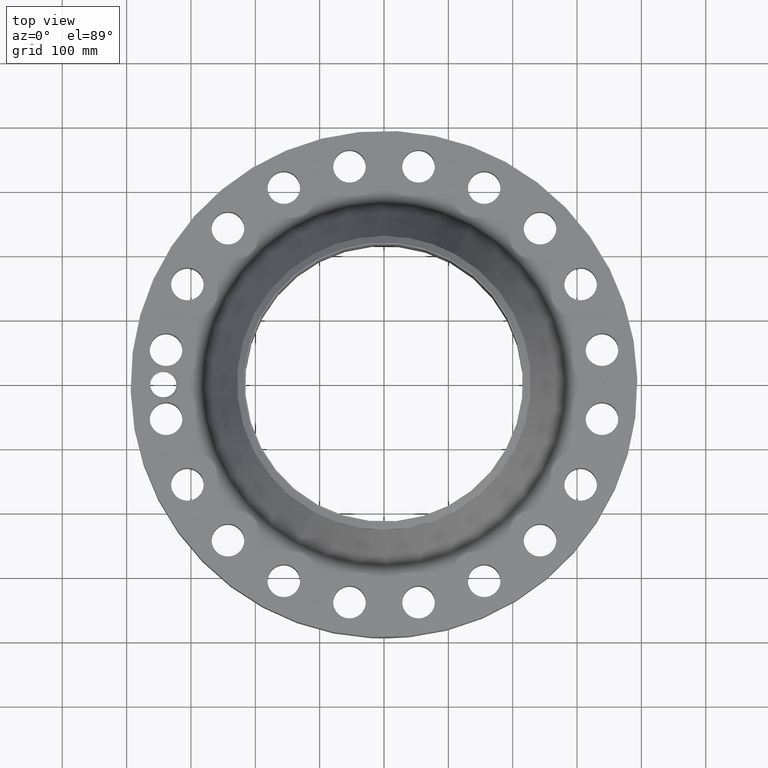
[diagram: clean part render]
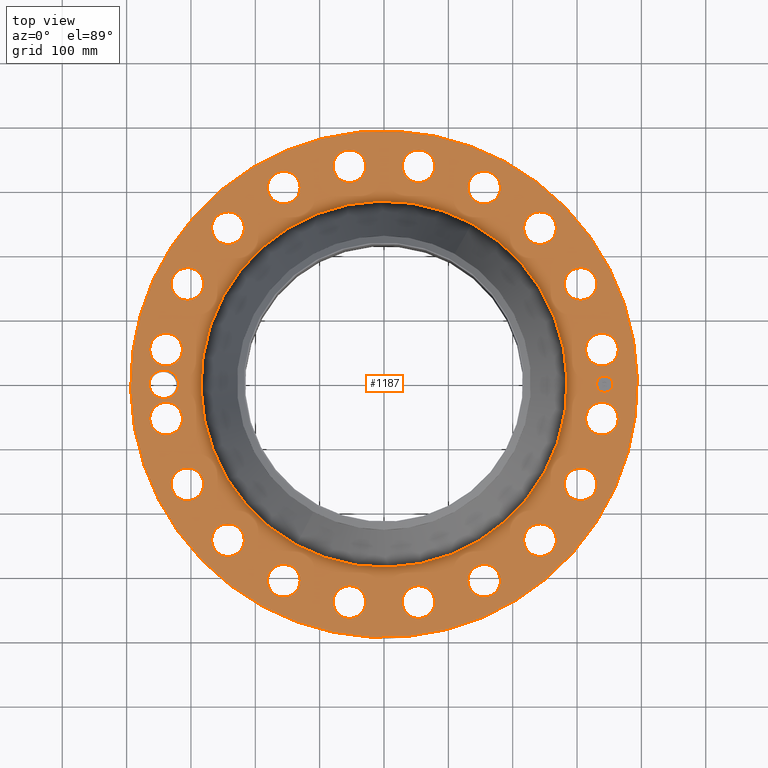
[diagram: same view with one face highlighted and labeled with its STEP entity id]
A machine part, top view. The second image highlights one B-rep face of the part: STEP entity #1187.
In plain terms, the highlighted planar face has unit normal (0, 0, -1).
Its self-contained STEP definition (entity closure, byte-faithful):
#58=AXIS2_PLACEMENT_3D('Circle Axis2P3D',#56,#57,$) ;
#621=AXIS2_PLACEMENT_3D('Circle Axis2P3D',#619,#620,$) ;
#721=AXIS2_PLACEMENT_3D('Plane Axis2P3D',#718,#719,#720) ;
#775=AXIS2_PLACEMENT_3D('Circle Axis2P3D',#773,#774,$) ;
#782=AXIS2_PLACEMENT_3D('Circle Axis2P3D',#780,#781,$) ;
#793=AXIS2_PLACEMENT_3D('Circle Axis2P3D',#791,#792,$) ;
#802=AXIS2_PLACEMENT_3D('Circle Axis2P3D',#800,#801,$) ;
#811=AXIS2_PLACEMENT_3D('Circle Axis2P3D',#809,#810,$) ;
#820=AXIS2_PLACEMENT_3D('Circle Axis2P3D',#818,#819,$) ;
#829=AXIS2_PLACEMENT_3D('Circle Axis2P3D',#827,#828,$) ;
#838=AXIS2_PLACEMENT_3D('Circle Axis2P3D',#836,#837,$) ;
#847=AXIS2_PLACEMENT_3D('Circle Axis2P3D',#845,#846,$) ;
#856=AXIS2_PLACEMENT_3D('Circle Axis2P3D',#854,#855,$) ;
#865=AXIS2_PLACEMENT_3D('Circle Axis2P3D',#863,#864,$) ;
#874=AXIS2_PLACEMENT_3D('Circle Axis2P3D',#872,#873,$) ;
#883=AXIS2_PLACEMENT_3D('Circle Axis2P3D',#881,#882,$) ;
#892=AXIS2_PLACEMENT_3D('Circle Axis2P3D',#890,#891,$) ;
#901=AXIS2_PLACEMENT_3D('Circle Axis2P3D',#899,#900,$) ;
#910=AXIS2_PLACEMENT_3D('Circle Axis2P3D',#908,#909,$) ;
#919=AXIS2_PLACEMENT_3D('Circle Axis2P3D',#917,#918,$) ;
#928=AXIS2_PLACEMENT_3D('Circle Axis2P3D',#926,#927,$) ;
#937=AXIS2_PLACEMENT_3D('Circle Axis2P3D',#935,#936,$) ;
#946=AXIS2_PLACEMENT_3D('Circle Axis2P3D',#944,#945,$) ;
#955=AXIS2_PLACEMENT_3D('Circle Axis2P3D',#953,#954,$) ;
#964=AXIS2_PLACEMENT_3D('Circle Axis2P3D',#962,#963,$) ;
#973=AXIS2_PLACEMENT_3D('Circle Axis2P3D',#971,#972,$) ;
#982=AXIS2_PLACEMENT_3D('Circle Axis2P3D',#980,#981,$) ;
#991=AXIS2_PLACEMENT_3D('Circle Axis2P3D',#989,#990,$) ;
#1000=AXIS2_PLACEMENT_3D('Circle Axis2P3D',#998,#999,$) ;
#1009=AXIS2_PLACEMENT_3D('Circle Axis2P3D',#1007,#1008,$) ;
#1018=AXIS2_PLACEMENT_3D('Circle Axis2P3D',#1016,#1017,$) ;
#1027=AXIS2_PLACEMENT_3D('Circle Axis2P3D',#1025,#1026,$) ;
#1036=AXIS2_PLACEMENT_3D('Circle Axis2P3D',#1034,#1035,$) ;
#1045=AXIS2_PLACEMENT_3D('Circle Axis2P3D',#1043,#1044,$) ;
#1054=AXIS2_PLACEMENT_3D('Circle Axis2P3D',#1052,#1053,$) ;
#1063=AXIS2_PLACEMENT_3D('Circle Axis2P3D',#1061,#1062,$) ;
#1072=AXIS2_PLACEMENT_3D('Circle Axis2P3D',#1070,#1071,$) ;
#1081=AXIS2_PLACEMENT_3D('Circle Axis2P3D',#1079,#1080,$) ;
#1090=AXIS2_PLACEMENT_3D('Circle Axis2P3D',#1088,#1089,$) ;
#1099=AXIS2_PLACEMENT_3D('Circle Axis2P3D',#1097,#1098,$) ;
#1108=AXIS2_PLACEMENT_3D('Circle Axis2P3D',#1106,#1107,$) ;
#1117=AXIS2_PLACEMENT_3D('Circle Axis2P3D',#1115,#1116,$) ;
#1126=AXIS2_PLACEMENT_3D('Circle Axis2P3D',#1124,#1125,$) ;
#1135=AXIS2_PLACEMENT_3D('Circle Axis2P3D',#1133,#1134,$) ;
#1144=AXIS2_PLACEMENT_3D('Circle Axis2P3D',#1142,#1143,$) ;
#1153=AXIS2_PLACEMENT_3D('Circle Axis2P3D',#1151,#1152,$) ;
#1162=AXIS2_PLACEMENT_3D('Circle Axis2P3D',#1160,#1161,$) ;
#1171=AXIS2_PLACEMENT_3D('Circle Axis2P3D',#1169,#1170,$) ;
#1180=AXIS2_PLACEMENT_3D('Circle Axis2P3D',#1178,#1179,$) ;
#53=CARTESIAN_POINT('Vertex',(-7.43109584839,-13.6025297094,4.25000000002)) ;
#56=CARTESIAN_POINT('Axis2P3D Location',(0.,0.,4.25000000002)) ;
#60=CARTESIAN_POINT('Vertex',(7.43109584839,13.6025297094,4.25000000002)) ;
#619=CARTESIAN_POINT('Axis2P3D Location',(0.,0.,4.25000000002)) ;
#718=CARTESIAN_POINT('Axis2P3D Location',(0.,15.5000000001,4.25000000002)) ;
#728=CARTESIAN_POINT('Control Point',(-12.5625000001,4.47585975282E-015,4.25000000002)) ;
#729=CARTESIAN_POINT('Control Point',(-12.5658486124,0.0752397465132,4.25000000002)) ;
#730=CARTESIAN_POINT('Control Point',(-12.5767531939,0.149987026567,4.25000000002)) ;
#731=CARTESIAN_POINT('Control Point',(-12.5951503388,0.223217022199,4.25000000002)) ;
#732=CARTESIAN_POINT('Control Point',(-12.6463729456,0.364618376065,4.25000000002)) ;
#733=CARTESIAN_POINT('Control Point',(-12.7245963322,0.492274300287,4.25000000002)) ;
#734=CARTESIAN_POINT('Control Point',(-12.7699947335,0.551754648168,4.25000000002)) ;
#735=CARTESIAN_POINT('Control Point',(-12.8720311049,0.660346621747,4.25000000002)) ;
#736=CARTESIAN_POINT('Control Point',(-12.9934279303,0.745630432672,4.25000000002)) ;
#737=CARTESIAN_POINT('Control Point',(-13.0581602233,0.781776573789,4.25000000002)) ;
#738=CARTESIAN_POINT('Control Point',(-13.1712137396,0.830357967696,4.25000000002)) ;
#739=CARTESIAN_POINT('Control Point',(-13.2901022282,0.85871043732,4.25000000002)) ;
#740=CARTESIAN_POINT('Control Point',(-13.3382768743,0.866725037548,4.25000000002)) ;
#741=CARTESIAN_POINT('Control Point',(-13.4180331983,0.874371070546,4.25000000002)) ;
#742=CARTESIAN_POINT('Control Point',(-13.4977855393,0.872912337777,4.25000000002)) ;
#743=CARTESIAN_POINT('Control Point',(-13.5289669714,0.870941299159,4.25000000002)) ;
#744=CARTESIAN_POINT('Control Point',(-13.5599796824,0.867579221346,4.25000000002)) ;
#745=CARTESIAN_POINT('Control Point',(-13.5907413049,0.862841686291,4.25000000002)) ;
#746=CARTESIAN_POINT('Vertex',(-12.5625000001,4.47585975282E-015,4.25000000002)) ;
#748=CARTESIAN_POINT('Vertex',(-13.5907413049,0.862841686291,4.25000000002)) ;
#752=CARTESIAN_POINT('Control Point',(-12.5625000001,0.,4.25000000002)) ;
#753=CARTESIAN_POINT('Control Point',(-12.5658491795,-0.0752524886494,4.25000000002)) ;
#754=CARTESIAN_POINT('Control Point',(-12.576756915,-0.150012342381,4.25000000002)) ;
#755=CARTESIAN_POINT('Control Point',(-12.5951533231,-0.223239907341,4.25000000002)) ;
#756=CARTESIAN_POINT('Control Point',(-12.6463784794,-0.364651652733,4.25000000002)) ;
#757=CARTESIAN_POINT('Control Point',(-12.7245736954,-0.492256747685,4.25000000002)) ;
#758=CARTESIAN_POINT('Control Point',(-12.7699609517,-0.551715819339,4.25000000002)) ;
#759=CARTESIAN_POINT('Control Point',(-12.8719890104,-0.660302429929,4.25000000002)) ;
#760=CARTESIAN_POINT('Control Point',(-12.9933301485,-0.745568301579,4.25000000002)) ;
#761=CARTESIAN_POINT('Control Point',(-13.0580542985,-0.781724356876,4.25000000002)) ;
#762=CARTESIAN_POINT('Control Point',(-13.1936449616,-0.840027223823,4.25000000002)) ;
#763=CARTESIAN_POINT('Control Point',(-13.337679587,-0.869225062827,4.25000000002)) ;
#764=CARTESIAN_POINT('Control Point',(-13.4107744729,-0.876250803678,4.25000000002)) ;
#765=CARTESIAN_POINT('Control Point',(-13.49094601,-0.875557275387,4.25000000002)) ;
#766=CARTESIAN_POINT('Control Point',(-13.5699063511,-0.865829472276,4.25000000002)) ;
#767=CARTESIAN_POINT('Control Point',(-13.576818554,-0.864907319626,4.25000000002)) ;
#768=CARTESIAN_POINT('Control Point',(-13.5837195993,-0.863915987763,4.25000000002)) ;
#769=CARTESIAN_POINT('Control Point',(-13.5906085509,-0.862855637126,4.25000000002)) ;
#770=CARTESIAN_POINT('Vertex',(-13.5906085509,-0.862855637126,4.25000000002)) ;
#773=CARTESIAN_POINT('Axis2P3D Location',(-13.5000000001,-1.1189649382E-014,4.25000000002)) ;
#777=CARTESIAN_POINT('Vertex',(-14.2613906308,0.415949597295,4.25000000002)) ;
#780=CARTESIAN_POINT('Axis2P3D Location',(-13.5000000001,-1.1189649382E-014,4.25000000002)) ;
#791=CARTESIAN_POINT('Axis2P3D Location',(13.3337925981,-2.11186527805,4.25000000002)) ;
#795=CARTESIAN_POINT('Vertex',(12.4562100362,-1.63243973945,4.25000000002)) ;
#797=CARTESIAN_POINT('Vertex',(14.21137516,-2.59129081666,4.25000000002)) ;
#800=CARTESIAN_POINT('Axis2P3D Location',(13.3337925981,-2.11186527805,4.25000000002)) ;
#809=CARTESIAN_POINT('Axis2P3D Location',(0.,0.,4.25000000002)) ;
#813=CARTESIAN_POINT('Vertex',(-5.36985711754,-9.829457521,4.25000000002)) ;
#815=CARTESIAN_POINT('Vertex',(5.36985711754,9.829457521,4.25000000002)) ;
#818=CARTESIAN_POINT('Axis2P3D Location',(0.,0.,4.25000000002)) ;
#827=CARTESIAN_POINT('Axis2P3D Location',(12.0285880766,-6.12887174651,4.25000000002)) ;
#831=CARTESIAN_POINT('Vertex',(12.7150680517,-6.85602045467,4.25000000002)) ;
#833=CARTESIAN_POINT('Vertex',(11.3421081015,-5.40172303835,4.25000000002)) ;
#836=CARTESIAN_POINT('Axis2P3D Location',(12.0285880766,-6.12887174651,4.25000000002)) ;
#845=CARTESIAN_POINT('Axis2P3D Location',(9.54594154606,-9.54594154606,4.25000000002)) ;
#849=CARTESIAN_POINT('Vertex',(9.97412149143,-10.4496350419,4.25000000002)) ;
#851=CARTESIAN_POINT('Vertex',(9.11776160068,-8.64224805024,4.25000000002)) ;
#854=CARTESIAN_POINT('Axis2P3D Location',(9.54594154606,-9.54594154606,4.25000000002)) ;
#863=CARTESIAN_POINT('Axis2P3D Location',(6.12887174651,-12.0285880766,4.25000000002)) ;
#867=CARTESIAN_POINT('Vertex',(6.25683842579,-13.0203665443,4.25000000002)) ;
#869=CARTESIAN_POINT('Vertex',(6.00090506723,-11.0368096089,4.25000000002)) ;
#872=CARTESIAN_POINT('Axis2P3D Location',(6.12887174651,-12.0285880766,4.25000000002)) ;
#881=CARTESIAN_POINT('Axis2P3D Location',(2.11186527805,-13.3337925981,4.25000000002)) ;
#885=CARTESIAN_POINT('Vertex',(1.92709242107,-14.3165738511,4.25000000002)) ;
#887=CARTESIAN_POINT('Vertex',(2.29663813503,-12.351011345,4.25000000002)) ;
#890=CARTESIAN_POINT('Axis2P3D Location',(2.11186527805,-13.3337925981,4.25000000002)) ;
#899=CARTESIAN_POINT('Axis2P3D Location',(-2.11186527805,-13.3337925981,4.25000000002)) ;
#903=CARTESIAN_POINT('Vertex',(-2.59129081666,-14.21137516,4.25000000002)) ;
#905=CARTESIAN_POINT('Vertex',(-1.63243973945,-12.4562100362,4.25000000002)) ;
#908=CARTESIAN_POINT('Axis2P3D Location',(-2.11186527805,-13.3337925981,4.25000000002)) ;
#917=CARTESIAN_POINT('Axis2P3D Location',(-6.12887174651,-12.0285880766,4.25000000002)) ;
#921=CARTESIAN_POINT('Vertex',(-6.85602045467,-12.7150680517,4.25000000002)) ;
#923=CARTESIAN_POINT('Vertex',(-5.40172303835,-11.3421081015,4.25000000002)) ;
#926=CARTESIAN_POINT('Axis2P3D Location',(-6.12887174651,-12.0285880766,4.25000000002)) ;
#935=CARTESIAN_POINT('Axis2P3D Location',(-9.54594154606,-9.54594154606,4.25000000002)) ;
#939=CARTESIAN_POINT('Vertex',(-10.4496350419,-9.97412149143,4.25000000002)) ;
#941=CARTESIAN_POINT('Vertex',(-8.64224805024,-9.11776160068,4.25000000002)) ;
#944=CARTESIAN_POINT('Axis2P3D Location',(-9.54594154606,-9.54594154606,4.25000000002)) ;
#953=CARTESIAN_POINT('Axis2P3D Location',(-12.0285880766,-6.12887174651,4.25000000002)) ;
#957=CARTESIAN_POINT('Vertex',(-13.0203665443,-6.25683842579,4.25000000002)) ;
#959=CARTESIAN_POINT('Vertex',(-11.0368096089,-6.00090506723,4.25000000002)) ;
#962=CARTESIAN_POINT('Axis2P3D Location',(-12.0285880766,-6.12887174651,4.25000000002)) ;
#971=CARTESIAN_POINT('Axis2P3D Location',(-13.3337925981,-2.11186527805,4.25000000002)) ;
#975=CARTESIAN_POINT('Vertex',(-14.3165738511,-1.92709242107,4.25000000002)) ;
#977=CARTESIAN_POINT('Vertex',(-12.351011345,-2.29663813503,4.25000000002)) ;
#980=CARTESIAN_POINT('Axis2P3D Location',(-13.3337925981,-2.11186527805,4.25000000002)) ;
#989=CARTESIAN_POINT('Axis2P3D Location',(-13.3337925981,2.11186527805,4.25000000002)) ;
#993=CARTESIAN_POINT('Vertex',(-14.21137516,2.59129081666,4.25000000002)) ;
#995=CARTESIAN_POINT('Vertex',(-12.4562100362,1.63243973945,4.25000000002)) ;
#998=CARTESIAN_POINT('Axis2P3D Location',(-13.3337925981,2.11186527805,4.25000000002)) ;
#1007=CARTESIAN_POINT('Axis2P3D Location',(-12.0285880766,6.12887174651,4.25000000002)) ;
#1011=CARTESIAN_POINT('Vertex',(-12.7150680517,6.85602045467,4.25000000002)) ;
#1013=CARTESIAN_POINT('Vertex',(-11.3421081015,5.40172303835,4.25000000002)) ;
#1016=CARTESIAN_POINT('Axis2P3D Location',(-12.0285880766,6.12887174651,4.25000000002)) ;
#1025=CARTESIAN_POINT('Axis2P3D Location',(-9.54594154606,9.54594154606,4.25000000002)) ;
#1029=CARTESIAN_POINT('Vertex',(-9.97412149143,10.4496350419,4.25000000002)) ;
#1031=CARTESIAN_POINT('Vertex',(-9.11776160068,8.64224805024,4.25000000002)) ;
#1034=CARTESIAN_POINT('Axis2P3D Location',(-9.54594154606,9.54594154606,4.25000000002)) ;
#1043=CARTESIAN_POINT('Axis2P3D Location',(-6.12887174651,12.0285880766,4.25000000002)) ;
#1047=CARTESIAN_POINT('Vertex',(-6.25683842579,13.0203665443,4.25000000002)) ;
#1049=CARTESIAN_POINT('Vertex',(-6.00090506723,11.0368096089,4.25000000002)) ;
#1052=CARTESIAN_POINT('Axis2P3D Location',(-6.12887174651,12.0285880766,4.25000000002)) ;
#1061=CARTESIAN_POINT('Axis2P3D Location',(-2.11186527805,13.3337925981,4.25000000002)) ;
#1065=CARTESIAN_POINT('Vertex',(-1.92709242107,14.3165738511,4.25000000002)) ;
#1067=CARTESIAN_POINT('Vertex',(-2.29663813503,12.351011345,4.25000000002)) ;
#1070=CARTESIAN_POINT('Axis2P3D Location',(-2.11186527805,13.3337925981,4.25000000002)) ;
#1079=CARTESIAN_POINT('Axis2P3D Location',(2.11186527805,13.3337925981,4.25000000002)) ;
#1083=CARTESIAN_POINT('Vertex',(2.59129081666,14.21137516,4.25000000002)) ;
#1085=CARTESIAN_POINT('Vertex',(1.63243973945,12.4562100362,4.25000000002)) ;
#1088=CARTESIAN_POINT('Axis2P3D Location',(2.11186527805,13.3337925981,4.25000000002)) ;
#1097=CARTESIAN_POINT('Axis2P3D Location',(6.12887174651,12.0285880766,4.25000000002)) ;
#1101=CARTESIAN_POINT('Vertex',(6.85602045467,12.7150680517,4.25000000002)) ;
#1103=CARTESIAN_POINT('Vertex',(5.40172303835,11.3421081015,4.25000000002)) ;
#1106=CARTESIAN_POINT('Axis2P3D Location',(6.12887174651,12.0285880766,4.25000000002)) ;
#1115=CARTESIAN_POINT('Axis2P3D Location',(9.54594154606,9.54594154606,4.25000000002)) ;
#1119=CARTESIAN_POINT('Vertex',(10.4496350419,9.97412149143,4.25000000002)) ;
#1121=CARTESIAN_POINT('Vertex',(8.64224805024,9.11776160068,4.25000000002)) ;
#1124=CARTESIAN_POINT('Axis2P3D Location',(9.54594154606,9.54594154606,4.25000000002)) ;
#1133=CARTESIAN_POINT('Axis2P3D Location',(12.0285880766,6.12887174651,4.25000000002)) ;
#1137=CARTESIAN_POINT('Vertex',(13.0203665443,6.25683842579,4.25000000002)) ;
#1139=CARTESIAN_POINT('Vertex',(11.0368096089,6.00090506723,4.25000000002)) ;
#1142=CARTESIAN_POINT('Axis2P3D Location',(12.0285880766,6.12887174651,4.25000000002)) ;
#1151=CARTESIAN_POINT('Axis2P3D Location',(13.3337925981,2.11186527805,4.25000000002)) ;
#1155=CARTESIAN_POINT('Vertex',(14.3165738511,1.92709242107,4.25000000002)) ;
#1157=CARTESIAN_POINT('Vertex',(12.351011345,2.29663813503,4.25000000002)) ;
#1160=CARTESIAN_POINT('Axis2P3D Location',(13.3337925981,2.11186527805,4.25000000002)) ;
#1169=CARTESIAN_POINT('Axis2P3D Location',(13.5000000001,-1.23086143203E-013,4.25000000002)) ;
#1173=CARTESIAN_POINT('Vertex',(13.5000000001,0.499999995002,4.25000000002)) ;
#1175=CARTESIAN_POINT('Vertex',(13.5000000001,-0.499999995002,4.25000000002)) ;
#1178=CARTESIAN_POINT('Axis2P3D Location',(13.5000000001,-1.23086143203E-013,4.25000000002)) ;
#57=DIRECTION('Axis2P3D Direction',(0.,0.,-0.0393700787402)) ;
#620=DIRECTION('Axis2P3D Direction',(0.,0.,-0.0393700787402)) ;
#719=DIRECTION('Axis2P3D Direction',(0.,0.,-0.0393700787402)) ;
#720=DIRECTION('Axis2P3D XDirection',(0.0393700787402,0.,0.)) ;
#774=DIRECTION('Axis2P3D Direction',(0.,0.,-0.0393700787402)) ;
#781=DIRECTION('Axis2P3D Direction',(0.,0.,-0.0393700787402)) ;
#792=DIRECTION('Axis2P3D Direction',(0.,0.,-0.0393700787402)) ;
#801=DIRECTION('Axis2P3D Direction',(0.,0.,-0.0393700787402)) ;
#810=DIRECTION('Axis2P3D Direction',(0.,0.,-0.0393700787402)) ;
#819=DIRECTION('Axis2P3D Direction',(0.,0.,-0.0393700787402)) ;
#828=DIRECTION('Axis2P3D Direction',(0.,0.,-0.0393700787402)) ;
#837=DIRECTION('Axis2P3D Direction',(0.,0.,-0.0393700787402)) ;
#846=DIRECTION('Axis2P3D Direction',(0.,0.,-0.0393700787402)) ;
#855=DIRECTION('Axis2P3D Direction',(0.,0.,-0.0393700787402)) ;
#864=DIRECTION('Axis2P3D Direction',(0.,0.,-0.0393700787402)) ;
#873=DIRECTION('Axis2P3D Direction',(0.,0.,-0.0393700787402)) ;
#882=DIRECTION('Axis2P3D Direction',(0.,0.,-0.0393700787402)) ;
#891=DIRECTION('Axis2P3D Direction',(0.,0.,-0.0393700787402)) ;
#900=DIRECTION('Axis2P3D Direction',(0.,0.,-0.0393700787402)) ;
#909=DIRECTION('Axis2P3D Direction',(0.,0.,-0.0393700787402)) ;
#918=DIRECTION('Axis2P3D Direction',(0.,0.,-0.0393700787402)) ;
#927=DIRECTION('Axis2P3D Direction',(0.,0.,-0.0393700787402)) ;
#936=DIRECTION('Axis2P3D Direction',(0.,0.,-0.0393700787402)) ;
#945=DIRECTION('Axis2P3D Direction',(0.,0.,-0.0393700787402)) ;
#954=DIRECTION('Axis2P3D Direction',(0.,0.,-0.0393700787402)) ;
#963=DIRECTION('Axis2P3D Direction',(0.,0.,-0.0393700787402)) ;
#972=DIRECTION('Axis2P3D Direction',(0.,0.,-0.0393700787402)) ;
#981=DIRECTION('Axis2P3D Direction',(0.,0.,-0.0393700787402)) ;
#990=DIRECTION('Axis2P3D Direction',(0.,0.,-0.0393700787402)) ;
#999=DIRECTION('Axis2P3D Direction',(0.,0.,-0.0393700787402)) ;
#1008=DIRECTION('Axis2P3D Direction',(0.,0.,-0.0393700787402)) ;
#1017=DIRECTION('Axis2P3D Direction',(0.,0.,-0.0393700787402)) ;
#1026=DIRECTION('Axis2P3D Direction',(0.,0.,-0.0393700787402)) ;
#1035=DIRECTION('Axis2P3D Direction',(0.,0.,-0.0393700787402)) ;
#1044=DIRECTION('Axis2P3D Direction',(0.,0.,-0.0393700787402)) ;
#1053=DIRECTION('Axis2P3D Direction',(0.,0.,-0.0393700787402)) ;
#1062=DIRECTION('Axis2P3D Direction',(0.,0.,-0.0393700787402)) ;
#1071=DIRECTION('Axis2P3D Direction',(0.,0.,-0.0393700787402)) ;
#1080=DIRECTION('Axis2P3D Direction',(0.,0.,-0.0393700787402)) ;
#1089=DIRECTION('Axis2P3D Direction',(0.,0.,-0.0393700787402)) ;
#1098=DIRECTION('Axis2P3D Direction',(0.,0.,-0.0393700787402)) ;
#1107=DIRECTION('Axis2P3D Direction',(0.,0.,-0.0393700787402)) ;
#1116=DIRECTION('Axis2P3D Direction',(0.,0.,-0.0393700787402)) ;
#1125=DIRECTION('Axis2P3D Direction',(0.,0.,-0.0393700787402)) ;
#1134=DIRECTION('Axis2P3D Direction',(0.,0.,-0.0393700787402)) ;
#1143=DIRECTION('Axis2P3D Direction',(0.,0.,-0.0393700787402)) ;
#1152=DIRECTION('Axis2P3D Direction',(0.,0.,-0.0393700787402)) ;
#1161=DIRECTION('Axis2P3D Direction',(0.,0.,-0.0393700787402)) ;
#1170=DIRECTION('Axis2P3D Direction',(0.,0.,-0.0393700787402)) ;
#1179=DIRECTION('Axis2P3D Direction',(0.,0.,-0.0393700787402)) ;
#724=ORIENTED_EDGE('',*,*,#623,.F.) ;
#725=ORIENTED_EDGE('',*,*,#62,.F.) ;
#786=ORIENTED_EDGE('',*,*,#750,.F.) ;
#787=ORIENTED_EDGE('',*,*,#772,.T.) ;
#788=ORIENTED_EDGE('',*,*,#779,.T.) ;
#789=ORIENTED_EDGE('',*,*,#784,.T.) ;
#806=ORIENTED_EDGE('',*,*,#799,.T.) ;
#807=ORIENTED_EDGE('',*,*,#804,.T.) ;
#824=ORIENTED_EDGE('',*,*,#817,.T.) ;
#825=ORIENTED_EDGE('',*,*,#822,.T.) ;
#842=ORIENTED_EDGE('',*,*,#835,.T.) ;
#843=ORIENTED_EDGE('',*,*,#840,.T.) ;
#860=ORIENTED_EDGE('',*,*,#853,.T.) ;
#861=ORIENTED_EDGE('',*,*,#858,.T.) ;
#878=ORIENTED_EDGE('',*,*,#871,.T.) ;
#879=ORIENTED_EDGE('',*,*,#876,.T.) ;
#896=ORIENTED_EDGE('',*,*,#889,.T.) ;
#897=ORIENTED_EDGE('',*,*,#894,.T.) ;
#914=ORIENTED_EDGE('',*,*,#907,.T.) ;
#915=ORIENTED_EDGE('',*,*,#912,.T.) ;
#932=ORIENTED_EDGE('',*,*,#925,.T.) ;
#933=ORIENTED_EDGE('',*,*,#930,.T.) ;
#950=ORIENTED_EDGE('',*,*,#943,.T.) ;
#951=ORIENTED_EDGE('',*,*,#948,.T.) ;
#968=ORIENTED_EDGE('',*,*,#961,.T.) ;
#969=ORIENTED_EDGE('',*,*,#966,.T.) ;
#986=ORIENTED_EDGE('',*,*,#979,.T.) ;
#987=ORIENTED_EDGE('',*,*,#984,.T.) ;
#1004=ORIENTED_EDGE('',*,*,#997,.T.) ;
#1005=ORIENTED_EDGE('',*,*,#1002,.T.) ;
#1022=ORIENTED_EDGE('',*,*,#1015,.T.) ;
#1023=ORIENTED_EDGE('',*,*,#1020,.T.) ;
#1040=ORIENTED_EDGE('',*,*,#1033,.T.) ;
#1041=ORIENTED_EDGE('',*,*,#1038,.T.) ;
#1058=ORIENTED_EDGE('',*,*,#1051,.T.) ;
#1059=ORIENTED_EDGE('',*,*,#1056,.T.) ;
#1076=ORIENTED_EDGE('',*,*,#1069,.T.) ;
#1077=ORIENTED_EDGE('',*,*,#1074,.T.) ;
#1094=ORIENTED_EDGE('',*,*,#1087,.T.) ;
#1095=ORIENTED_EDGE('',*,*,#1092,.T.) ;
#1112=ORIENTED_EDGE('',*,*,#1105,.T.) ;
#1113=ORIENTED_EDGE('',*,*,#1110,.T.) ;
#1130=ORIENTED_EDGE('',*,*,#1123,.T.) ;
#1131=ORIENTED_EDGE('',*,*,#1128,.T.) ;
#1148=ORIENTED_EDGE('',*,*,#1141,.T.) ;
#1149=ORIENTED_EDGE('',*,*,#1146,.T.) ;
#1166=ORIENTED_EDGE('',*,*,#1159,.T.) ;
#1167=ORIENTED_EDGE('',*,*,#1164,.T.) ;
#1184=ORIENTED_EDGE('',*,*,#1177,.T.) ;
#1185=ORIENTED_EDGE('',*,*,#1182,.T.) ;
#790=FACE_BOUND('',#785,.T.) ;
#808=FACE_BOUND('',#805,.T.) ;
#826=FACE_BOUND('',#823,.T.) ;
#844=FACE_BOUND('',#841,.T.) ;
#862=FACE_BOUND('',#859,.T.) ;
#880=FACE_BOUND('',#877,.T.) ;
#898=FACE_BOUND('',#895,.T.) ;
#916=FACE_BOUND('',#913,.T.) ;
#934=FACE_BOUND('',#931,.T.) ;
#952=FACE_BOUND('',#949,.T.) ;
#970=FACE_BOUND('',#967,.T.) ;
#988=FACE_BOUND('',#985,.T.) ;
#1006=FACE_BOUND('',#1003,.T.) ;
#1024=FACE_BOUND('',#1021,.T.) ;
#1042=FACE_BOUND('',#1039,.T.) ;
#1060=FACE_BOUND('',#1057,.T.) ;
#1078=FACE_BOUND('',#1075,.T.) ;
#1096=FACE_BOUND('',#1093,.T.) ;
#1114=FACE_BOUND('',#1111,.T.) ;
#1132=FACE_BOUND('',#1129,.T.) ;
#1150=FACE_BOUND('',#1147,.T.) ;
#1168=FACE_BOUND('',#1165,.T.) ;
#1186=FACE_BOUND('',#1183,.T.) ;
#1187=ADVANCED_FACE('PartBody',(#726,#790,#808,#826,#844,#862,#880,#898,#916,#934,#952,#970,#988,#1006,#1024,#1042,#1060,#1078,#1096,#1114,#1132,#1150,#1168,#1186),#722,.F.) ;
#727=B_SPLINE_CURVE_WITH_KNOTS('',5,(#728,#729,#730,#731,#732,#733,#734,#735,#736,#737,#738,#739,#740,#741,#742,#743,#744,#745),.UNSPECIFIED.,.F.,.U.,(6,3,3,3,3,6),(0.,13.0812211586,26.1615137472,39.2351183475,47.9468111639,53.5645385165),.UNSPECIFIED.) ;
#751=B_SPLINE_CURVE_WITH_KNOTS('',5,(#752,#753,#754,#755,#756,#757,#758,#759,#760,#761,#762,#763,#764,#765,#766,#767,#768,#769),.UNSPECIFIED.,.F.,.U.,(6,3,3,3,3,6),(0.,13.0834365131,26.1743775179,39.2706417309,52.3528015909,53.609922176),.UNSPECIFIED.) ;
#59=CIRCLE('generated circle',#58,15.5000000001) ;
#622=CIRCLE('generated circle',#621,15.5000000001) ;
#776=CIRCLE('generated circle',#775,0.867600000003) ;
#783=CIRCLE('generated circle',#782,0.867600000003) ;
#794=CIRCLE('generated circle',#793,1.) ;
#803=CIRCLE('generated circle',#802,1.) ;
#812=CIRCLE('generated circle',#811,11.2006071541) ;
#821=CIRCLE('generated circle',#820,11.2006071541) ;
#830=CIRCLE('generated circle',#829,1.) ;
#839=CIRCLE('generated circle',#838,1.) ;
#848=CIRCLE('generated circle',#847,1.) ;
#857=CIRCLE('generated circle',#856,1.) ;
#866=CIRCLE('generated circle',#865,1.) ;
#875=CIRCLE('generated circle',#874,1.) ;
#884=CIRCLE('generated circle',#883,1.) ;
#893=CIRCLE('generated circle',#892,1.) ;
#902=CIRCLE('generated circle',#901,1.) ;
#911=CIRCLE('generated circle',#910,1.) ;
#920=CIRCLE('generated circle',#919,1.) ;
#929=CIRCLE('generated circle',#928,1.) ;
#938=CIRCLE('generated circle',#937,1.) ;
#947=CIRCLE('generated circle',#946,1.) ;
#956=CIRCLE('generated circle',#955,1.) ;
#965=CIRCLE('generated circle',#964,1.) ;
#974=CIRCLE('generated circle',#973,1.) ;
#983=CIRCLE('generated circle',#982,1.) ;
#992=CIRCLE('generated circle',#991,1.) ;
#1001=CIRCLE('generated circle',#1000,1.) ;
#1010=CIRCLE('generated circle',#1009,1.) ;
#1019=CIRCLE('generated circle',#1018,1.) ;
#1028=CIRCLE('generated circle',#1027,1.) ;
#1037=CIRCLE('generated circle',#1036,1.) ;
#1046=CIRCLE('generated circle',#1045,1.) ;
#1055=CIRCLE('generated circle',#1054,1.) ;
#1064=CIRCLE('generated circle',#1063,1.) ;
#1073=CIRCLE('generated circle',#1072,1.) ;
#1082=CIRCLE('generated circle',#1081,1.) ;
#1091=CIRCLE('generated circle',#1090,1.) ;
#1100=CIRCLE('generated circle',#1099,1.) ;
#1109=CIRCLE('generated circle',#1108,1.) ;
#1118=CIRCLE('generated circle',#1117,1.) ;
#1127=CIRCLE('generated circle',#1126,1.) ;
#1136=CIRCLE('generated circle',#1135,1.) ;
#1145=CIRCLE('generated circle',#1144,1.) ;
#1154=CIRCLE('generated circle',#1153,1.) ;
#1163=CIRCLE('generated circle',#1162,1.) ;
#1172=CIRCLE('generated circle',#1171,0.499999995002) ;
#1181=CIRCLE('generated circle',#1180,0.499999995002) ;
#62=EDGE_CURVE('',#54,#61,#59,.T.) ;
#623=EDGE_CURVE('',#61,#54,#622,.T.) ;
#750=EDGE_CURVE('',#747,#749,#727,.T.) ;
#772=EDGE_CURVE('',#747,#771,#751,.T.) ;
#779=EDGE_CURVE('',#771,#778,#776,.T.) ;
#784=EDGE_CURVE('',#778,#749,#783,.T.) ;
#799=EDGE_CURVE('',#796,#798,#794,.T.) ;
#804=EDGE_CURVE('',#798,#796,#803,.T.) ;
#817=EDGE_CURVE('',#814,#816,#812,.T.) ;
#822=EDGE_CURVE('',#816,#814,#821,.T.) ;
#835=EDGE_CURVE('',#832,#834,#830,.T.) ;
#840=EDGE_CURVE('',#834,#832,#839,.T.) ;
#853=EDGE_CURVE('',#850,#852,#848,.T.) ;
#858=EDGE_CURVE('',#852,#850,#857,.T.) ;
#871=EDGE_CURVE('',#868,#870,#866,.T.) ;
#876=EDGE_CURVE('',#870,#868,#875,.T.) ;
#889=EDGE_CURVE('',#886,#888,#884,.T.) ;
#894=EDGE_CURVE('',#888,#886,#893,.T.) ;
#907=EDGE_CURVE('',#904,#906,#902,.T.) ;
#912=EDGE_CURVE('',#906,#904,#911,.T.) ;
#925=EDGE_CURVE('',#922,#924,#920,.T.) ;
#930=EDGE_CURVE('',#924,#922,#929,.T.) ;
#943=EDGE_CURVE('',#940,#942,#938,.T.) ;
#948=EDGE_CURVE('',#942,#940,#947,.T.) ;
#961=EDGE_CURVE('',#958,#960,#956,.T.) ;
#966=EDGE_CURVE('',#960,#958,#965,.T.) ;
#979=EDGE_CURVE('',#976,#978,#974,.T.) ;
#984=EDGE_CURVE('',#978,#976,#983,.T.) ;
#997=EDGE_CURVE('',#994,#996,#992,.T.) ;
#1002=EDGE_CURVE('',#996,#994,#1001,.T.) ;
#1015=EDGE_CURVE('',#1012,#1014,#1010,.T.) ;
#1020=EDGE_CURVE('',#1014,#1012,#1019,.T.) ;
#1033=EDGE_CURVE('',#1030,#1032,#1028,.T.) ;
#1038=EDGE_CURVE('',#1032,#1030,#1037,.T.) ;
#1051=EDGE_CURVE('',#1048,#1050,#1046,.T.) ;
#1056=EDGE_CURVE('',#1050,#1048,#1055,.T.) ;
#1069=EDGE_CURVE('',#1066,#1068,#1064,.T.) ;
#1074=EDGE_CURVE('',#1068,#1066,#1073,.T.) ;
#1087=EDGE_CURVE('',#1084,#1086,#1082,.T.) ;
#1092=EDGE_CURVE('',#1086,#1084,#1091,.T.) ;
#1105=EDGE_CURVE('',#1102,#1104,#1100,.T.) ;
#1110=EDGE_CURVE('',#1104,#1102,#1109,.T.) ;
#1123=EDGE_CURVE('',#1120,#1122,#1118,.T.) ;
#1128=EDGE_CURVE('',#1122,#1120,#1127,.T.) ;
#1141=EDGE_CURVE('',#1138,#1140,#1136,.T.) ;
#1146=EDGE_CURVE('',#1140,#1138,#1145,.T.) ;
#1159=EDGE_CURVE('',#1156,#1158,#1154,.T.) ;
#1164=EDGE_CURVE('',#1158,#1156,#1163,.T.) ;
#1177=EDGE_CURVE('',#1174,#1176,#1172,.T.) ;
#1182=EDGE_CURVE('',#1176,#1174,#1181,.T.) ;
#723=EDGE_LOOP('',(#724,#725)) ;
#785=EDGE_LOOP('',(#786,#787,#788,#789)) ;
#805=EDGE_LOOP('',(#806,#807)) ;
#823=EDGE_LOOP('',(#824,#825)) ;
#841=EDGE_LOOP('',(#842,#843)) ;
#859=EDGE_LOOP('',(#860,#861)) ;
#877=EDGE_LOOP('',(#878,#879)) ;
#895=EDGE_LOOP('',(#896,#897)) ;
#913=EDGE_LOOP('',(#914,#915)) ;
#931=EDGE_LOOP('',(#932,#933)) ;
#949=EDGE_LOOP('',(#950,#951)) ;
#967=EDGE_LOOP('',(#968,#969)) ;
#985=EDGE_LOOP('',(#986,#987)) ;
#1003=EDGE_LOOP('',(#1004,#1005)) ;
#1021=EDGE_LOOP('',(#1022,#1023)) ;
#1039=EDGE_LOOP('',(#1040,#1041)) ;
#1057=EDGE_LOOP('',(#1058,#1059)) ;
#1075=EDGE_LOOP('',(#1076,#1077)) ;
#1093=EDGE_LOOP('',(#1094,#1095)) ;
#1111=EDGE_LOOP('',(#1112,#1113)) ;
#1129=EDGE_LOOP('',(#1130,#1131)) ;
#1147=EDGE_LOOP('',(#1148,#1149)) ;
#1165=EDGE_LOOP('',(#1166,#1167)) ;
#1183=EDGE_LOOP('',(#1184,#1185)) ;
#726=FACE_OUTER_BOUND('',#723,.T.) ;
#722=PLANE('',#721) ;
#54=VERTEX_POINT('',#53) ;
#61=VERTEX_POINT('',#60) ;
#747=VERTEX_POINT('',#746) ;
#749=VERTEX_POINT('',#748) ;
#771=VERTEX_POINT('',#770) ;
#778=VERTEX_POINT('',#777) ;
#796=VERTEX_POINT('',#795) ;
#798=VERTEX_POINT('',#797) ;
#814=VERTEX_POINT('',#813) ;
#816=VERTEX_POINT('',#815) ;
#832=VERTEX_POINT('',#831) ;
#834=VERTEX_POINT('',#833) ;
#850=VERTEX_POINT('',#849) ;
#852=VERTEX_POINT('',#851) ;
#868=VERTEX_POINT('',#867) ;
#870=VERTEX_POINT('',#869) ;
#886=VERTEX_POINT('',#885) ;
#888=VERTEX_POINT('',#887) ;
#904=VERTEX_POINT('',#903) ;
#906=VERTEX_POINT('',#905) ;
#922=VERTEX_POINT('',#921) ;
#924=VERTEX_POINT('',#923) ;
#940=VERTEX_POINT('',#939) ;
#942=VERTEX_POINT('',#941) ;
#958=VERTEX_POINT('',#957) ;
#960=VERTEX_POINT('',#959) ;
#976=VERTEX_POINT('',#975) ;
#978=VERTEX_POINT('',#977) ;
#994=VERTEX_POINT('',#993) ;
#996=VERTEX_POINT('',#995) ;
#1012=VERTEX_POINT('',#1011) ;
#1014=VERTEX_POINT('',#1013) ;
#1030=VERTEX_POINT('',#1029) ;
#1032=VERTEX_POINT('',#1031) ;
#1048=VERTEX_POINT('',#1047) ;
#1050=VERTEX_POINT('',#1049) ;
#1066=VERTEX_POINT('',#1065) ;
#1068=VERTEX_POINT('',#1067) ;
#1084=VERTEX_POINT('',#1083) ;
#1086=VERTEX_POINT('',#1085) ;
#1102=VERTEX_POINT('',#1101) ;
#1104=VERTEX_POINT('',#1103) ;
#1120=VERTEX_POINT('',#1119) ;
#1122=VERTEX_POINT('',#1121) ;
#1138=VERTEX_POINT('',#1137) ;
#1140=VERTEX_POINT('',#1139) ;
#1156=VERTEX_POINT('',#1155) ;
#1158=VERTEX_POINT('',#1157) ;
#1174=VERTEX_POINT('',#1173) ;
#1176=VERTEX_POINT('',#1175) ;